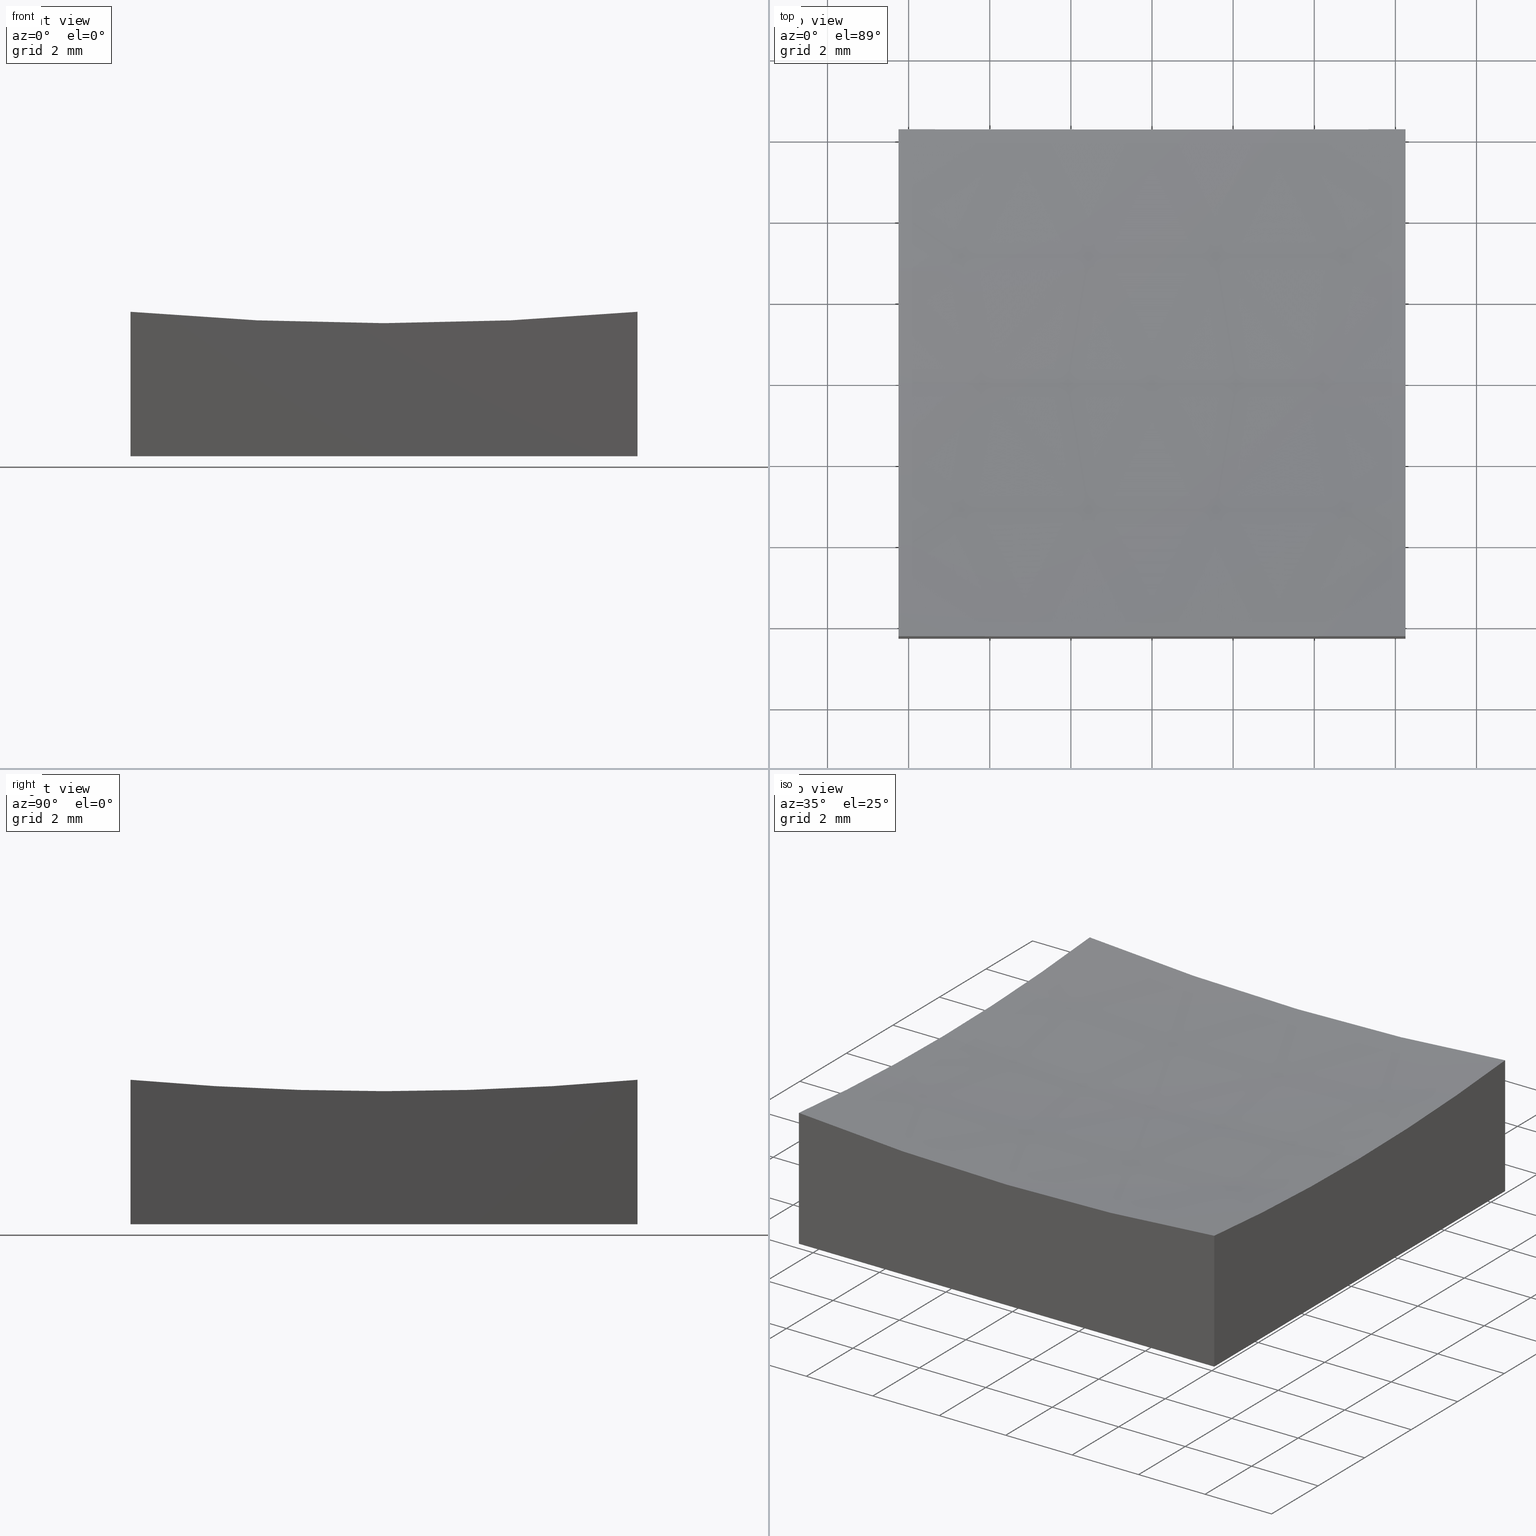
[diagram: canonical four-view strip — front | top / right | iso, engineering-drawing reading convention]
A machine part, canonical four-view strip (front | top / right | iso — engineering-drawing reading convention). The complete STEP part file that produces these views, byte-faithful:
ISO-10303-21;
HEADER;
FILE_DESCRIPTION (( 'STEP AP214' ),
    '1' );
FILE_NAME ('270016.STEP',
    '2020-06-01T08:49:42',
    ( '' ),
    ( '' ),
    'SwSTEP 2.0',
    'SolidWorks 2019',
    '' );
FILE_SCHEMA (( 'AUTOMOTIVE_DESIGN' ));
ENDSEC;

DATA;
#1 = EDGE_CURVE ( 'NONE', #153, #204, #198, .T. ) ;
#2 =( NAMED_UNIT ( * ) PLANE_ANGLE_UNIT ( ) SI_UNIT ( $, .RADIAN. ) );
#3 = DIRECTION ( 'NONE',  ( 0.0000000000000000000, 0.0000000000000000000, -1.000000000000000000 ) ) ;
#4 = DIRECTION ( 'NONE',  ( -1.000000000000000000, 1.224646799147353207E-16, 0.0000000000000000000 ) ) ;
#5 = PRODUCT_DEFINITION_SHAPE ( 'NONE', 'NONE',  #218 ) ;
#6 = ORIENTED_EDGE ( 'NONE', *, *, #97, .T. ) ;
#7 = PLANE ( 'NONE',  #18 ) ;
#8 = EDGE_LOOP ( 'NONE', ( #173, #211, #244, #109 ) ) ;
#9 = APPLICATION_CONTEXT ( 'automotive_design' ) ;
#10 = VECTOR ( 'NONE', #60, 1000.000000000000000 ) ;
#11 = FACE_OUTER_BOUND ( 'NONE', #50, .T. ) ;
#12 = VERTEX_POINT ( 'NONE', #196 ) ;
#13 = CARTESIAN_POINT ( 'NONE',  ( 6.250000000000000000, 6.250000000000000888, 0.0000000000000000000 ) ) ;
#14 = ORIENTED_EDGE ( 'NONE', *, *, #59, .F. ) ;
#15 = EDGE_CURVE ( 'NONE', #135, #52, #242, .T. ) ;
#16 = CIRCLE ( 'NONE', #48, 69.72042383692169665 ) ;
#17 = LINE ( 'NONE', #56, #162 ) ;
#18 = AXIS2_PLACEMENT_3D ( 'NONE', #168, #89, #216 ) ;
#19 = APPLICATION_PROTOCOL_DEFINITION ( 'draft international standard', 'automotive_design', 1998, #142 ) ;
#20 = PRESENTATION_LAYER_ASSIGNMENT (  '', '', ( #103 ) ) ;
#21 =( LENGTH_UNIT ( ) NAMED_UNIT ( * ) SI_UNIT ( .MILLI., .METRE. ) );
#22 = SURFACE_STYLE_USAGE ( .BOTH. , #250 ) ;
#23 = FILL_AREA_STYLE_COLOUR ( '', #110 ) ;
#24 = FACE_OUTER_BOUND ( 'NONE', #8, .T. ) ;
#25 = ORIENTED_EDGE ( 'NONE', *, *, #227, .T. ) ;
#26 = DIRECTION ( 'NONE',  ( 1.224646799147353207E-16, 1.000000000000000000, 3.905599837641398835E-33 ) ) ;
#27 = CARTESIAN_POINT ( 'NONE',  ( -6.250000000000000000, -6.250000000000000888, 0.0000000000000000000 ) ) ;
#28 = CARTESIAN_POINT ( 'NONE',  ( 8.939921633775681592E-15, 0.0000000000000000000, 73.00000000000001421 ) ) ;
#29 = UNCERTAINTY_MEASURE_WITH_UNIT (LENGTH_MEASURE( 1.000000000000000082E-05 ), #179, 'distance_accuracy_value', 'NONE');
#30 = EDGE_CURVE ( 'NONE', #12, #106, #212, .T. ) ;
#31 = ORIENTED_EDGE ( 'NONE', *, *, #59, .T. ) ;
#32 = DIRECTION ( 'NONE',  ( 0.0000000000000000000, 0.0000000000000000000, -1.000000000000000000 ) ) ;
#33 = AXIS2_PLACEMENT_3D ( 'NONE', #221, #245, #134 ) ;
#34 = ORIENTED_EDGE ( 'NONE', *, *, #143, .T. ) ;
#35 = CARTESIAN_POINT ( 'NONE',  ( -6.250000000000000000, 6.250000000000000888, 0.0000000000000000000 ) ) ;
#36 = CARTESIAN_POINT ( 'NONE',  ( -6.250000000000000000, -6.250000000000000888, 10.00000000000000000 ) ) ;
#37 = STYLED_ITEM ( 'NONE', ( #121 ), #116 ) ;
#38 =( NAMED_UNIT ( * ) PLANE_ANGLE_UNIT ( ) SI_UNIT ( $, .RADIAN. ) );
#39 = MANIFOLD_SOLID_BREP ( '�г�-��ת2', #192 ) ;
#40 = EDGE_CURVE ( 'NONE', #187, #222, #219, .T. ) ;
#41 = SURFACE_STYLE_FILL_AREA ( #62 ) ;
#42 = DIRECTION ( 'NONE',  ( -1.000000000000000000, 0.0000000000000000000, -0.0000000000000000000 ) ) ;
#43 = CARTESIAN_POINT ( 'NONE',  ( 8.939921633775681592E-15, -6.250000000000000888, 73.00000000000001421 ) ) ;
#44 = CARTESIAN_POINT ( 'NONE',  ( 6.250000000000000000, -6.250000000000000888, 10.00000000000000000 ) ) ;
#45 = SPHERICAL_SURFACE ( 'NONE', #237, 70.00000000000000000 ) ;
#46 = ORIENTED_EDGE ( 'NONE', *, *, #68, .F. ) ;
#47 = CARTESIAN_POINT ( 'NONE',  ( 6.250000000000000000, -6.250000000000000888, 3.560277938344263760 ) ) ;
#48 = AXIS2_PLACEMENT_3D ( 'NONE', #92, #223, #32 ) ;
#49 = CARTESIAN_POINT ( 'NONE',  ( 6.250000000000000000, 6.250000000000000888, 0.0000000000000000000 ) ) ;
#50 = EDGE_LOOP ( 'NONE', ( #90, #215, #130, #217, #224 ) ) ;
#51 = PLANE ( 'NONE',  #33 ) ;
#52 = VERTEX_POINT ( 'NONE', #177 ) ;
#53 = CARTESIAN_POINT ( 'NONE',  ( 6.250000000000000000, 6.250000000000000888, 3.560277938344263760 ) ) ;
#54 = VECTOR ( 'NONE', #229, 1000.000000000000000 ) ;
#55 = MECHANICAL_DESIGN_GEOMETRIC_PRESENTATION_REPRESENTATION (  '', ( #103 ), #96 ) ;
#56 = CARTESIAN_POINT ( 'NONE',  ( 6.250000000000000000, 6.250000000000000888, 10.00000000000000000 ) ) ;
#57 =( NAMED_UNIT ( * ) SI_UNIT ( $, .STERADIAN. ) SOLID_ANGLE_UNIT ( ) );
#58 = CIRCLE ( 'NONE', #190, 69.72042383692169665 ) ;
#59 = EDGE_CURVE ( 'NONE', #222, #67, #58, .T. ) ;
#60 = DIRECTION ( 'NONE',  ( 1.000000000000000000, 0.0000000000000000000, 0.0000000000000000000 ) ) ;
#61 = CARTESIAN_POINT ( 'NONE',  ( -6.250000000000000000, 6.250000000000000888, 3.560277938344263760 ) ) ;
#62 = FILL_AREA_STYLE ('',( #232 ) ) ;
#63 = CARTESIAN_POINT ( 'NONE',  ( -6.250000000000000000, -6.250000000000000888, 0.0000000000000000000 ) ) ;
#64 = DIRECTION ( 'NONE',  ( 1.000000000000000000, 0.0000000000000000000, 0.0000000000000000000 ) ) ;
#65 = AXIS2_PLACEMENT_3D ( 'NONE', #85, #26, #4 ) ;
#66 = DIRECTION ( 'NONE',  ( -0.0000000000000000000, 0.0000000000000000000, -1.000000000000000000 ) ) ;
#67 = VERTEX_POINT ( 'NONE', #120 ) ;
#68 = EDGE_CURVE ( 'NONE', #93, #106, #17, .T. ) ;
#69 = EDGE_CURVE ( 'NONE', #12, #153, #77, .T. ) ;
#70 = FACE_OUTER_BOUND ( 'NONE', #183, .T. ) ;
#71 = ORIENTED_EDGE ( 'NONE', *, *, #40, .F. ) ;
#72 = CARTESIAN_POINT ( 'NONE',  ( 1.545860043261271274E-14, 0.0000000000000000000, 3.000000000000002665 ) ) ;
#73 = ORIENTED_EDGE ( 'NONE', *, *, #207, .T. ) ;
#74 = AXIS2_PLACEMENT_3D ( 'NONE', #154, #132, #94 ) ;
#75 = AXIS2_PLACEMENT_3D ( 'NONE', #84, #234, #79 ) ;
#76 = EDGE_CURVE ( 'NONE', #52, #93, #230, .T. ) ;
#77 = LINE ( 'NONE', #35, #199 ) ;
#78 = SHAPE_DEFINITION_REPRESENTATION ( #5, #116 ) ;
#79 = DIRECTION ( 'NONE',  ( 1.000000000000000000, 0.0000000000000000000, 0.0000000000000000000 ) ) ;
#80 = AXIS2_PLACEMENT_3D ( 'NONE', #43, #83, #233 ) ;
#81 = DIRECTION ( 'NONE',  ( 0.0000000000000000000, 0.0000000000000000000, -1.000000000000000000 ) ) ;
#82 = CARTESIAN_POINT ( 'NONE',  ( 6.250000000000000000, -6.250000000000000888, 0.0000000000000000000 ) ) ;
#83 = DIRECTION ( 'NONE',  ( 0.0000000000000000000, 1.000000000000000000, 0.0000000000000000000 ) ) ;
#84 = CARTESIAN_POINT ( 'NONE',  ( 0.0000000000000000000, 0.0000000000000000000, 0.0000000000000000000 ) ) ;
#85 = CARTESIAN_POINT ( 'NONE',  ( 8.939921633775681592E-15, 0.0000000000000000000, 73.00000000000001421 ) ) ;
#86 = PRODUCT_DEFINITION_FORMATION_WITH_SPECIFIED_SOURCE ( '�κ�', '', #169, .NOT_KNOWN. ) ;
#87 = ORIENTED_EDGE ( 'NONE', *, *, #30, .F. ) ;
#88 = CIRCLE ( 'NONE', #101, 69.72042383692169665 ) ;
#89 = DIRECTION ( 'NONE',  ( 0.0000000000000000000, 1.000000000000000000, 0.0000000000000000000 ) ) ;
#90 = ORIENTED_EDGE ( 'NONE', *, *, #143, .F. ) ;
#91 = ADVANCED_FACE ( 'NONE', ( #11 ), #201, .F. ) ;
#92 = CARTESIAN_POINT ( 'NONE',  ( 6.250000000000000000, 0.0000000000000000000, 73.00000000000001421 ) ) ;
#93 = VERTEX_POINT ( 'NONE', #53 ) ;
#94 = DIRECTION ( 'NONE',  ( 0.0000000000000000000, 0.0000000000000000000, 1.000000000000000000 ) ) ;
#95 = ORIENTED_EDGE ( 'NONE', *, *, #69, .T. ) ;
#96 =( GEOMETRIC_REPRESENTATION_CONTEXT ( 3 ) GLOBAL_UNCERTAINTY_ASSIGNED_CONTEXT ( ( #138 ) ) GLOBAL_UNIT_ASSIGNED_CONTEXT ( ( #21, #2, #144 ) ) REPRESENTATION_CONTEXT ( 'NONE', 'WORKASPACE' ) );
#97 = EDGE_CURVE ( 'NONE', #187, #52, #16, .T. ) ;
#98 = EDGE_CURVE ( 'NONE', #106, #204, #156, .T. ) ;
#99 = DIRECTION ( 'NONE',  ( 1.000000000000000000, 0.0000000000000000000, -0.0000000000000000000 ) ) ;
#100 =( GEOMETRIC_REPRESENTATION_CONTEXT ( 3 ) GLOBAL_UNCERTAINTY_ASSIGNED_CONTEXT ( ( #29 ) ) GLOBAL_UNIT_ASSIGNED_CONTEXT ( ( #179, #148, #104 ) ) REPRESENTATION_CONTEXT ( 'NONE', 'WORKASPACE' ) );
#101 = AXIS2_PLACEMENT_3D ( 'NONE', #161, #213, #3 ) ;
#102 =( LENGTH_UNIT ( ) NAMED_UNIT ( * ) SI_UNIT ( .MILLI., .METRE. ) );
#103 = STYLED_ITEM ( 'NONE', ( #210 ), #39 ) ;
#104 =( NAMED_UNIT ( * ) SI_UNIT ( $, .STERADIAN. ) SOLID_ANGLE_UNIT ( ) );
#105 = CARTESIAN_POINT ( 'NONE',  ( -6.250000000000000000, 6.250000000000000888, 10.00000000000000000 ) ) ;
#106 = VERTEX_POINT ( 'NONE', #13 ) ;
#107 = FACE_OUTER_BOUND ( 'NONE', #112, .T. ) ;
#108 = EDGE_CURVE ( 'NONE', #93, #202, #166, .T. ) ;
#109 = ORIENTED_EDGE ( 'NONE', *, *, #1, .T. ) ;
#110 = COLOUR_RGB ( '',1.000000000000000000, 1.000000000000000000, 1.000000000000000000 ) ;
#111 = LINE ( 'NONE', #172, #205 ) ;
#112 = EDGE_LOOP ( 'NONE', ( #115, #31, #73, #175, #95 ) ) ;
#113 = DIRECTION ( 'NONE',  ( 0.0000000000000000000, -1.000000000000000000, 0.0000000000000000000 ) ) ;
#114 = MECHANICAL_DESIGN_GEOMETRIC_PRESENTATION_REPRESENTATION (  '', ( #37 ), #100 ) ;
#115 = ORIENTED_EDGE ( 'NONE', *, *, #226, .F. ) ;
#116 = ADVANCED_BREP_SHAPE_REPRESENTATION ( '270016', ( #39, #75 ), #209 ) ;
#117 = EDGE_CURVE ( 'NONE', #202, #12, #111, .T. ) ;
#118 = ADVANCED_FACE ( 'NONE', ( #70 ), #51, .T. ) ;
#119 = PRODUCT_CONTEXT ( 'NONE', #142, 'mechanical' ) ;
#120 = CARTESIAN_POINT ( 'NONE',  ( -6.250000000000000000, 7.654042494670971412E-16, 3.279576163078306905 ) ) ;
#121 = PRESENTATION_STYLE_ASSIGNMENT (( #22 ) ) ;
#122 = AXIS2_PLACEMENT_3D ( 'NONE', #141, #252, #42 ) ;
#123 = LINE ( 'NONE', #44, #225 ) ;
#124 = SURFACE_SIDE_STYLE ('',( #41 ) ) ;
#125 = FILL_AREA_STYLE ('',( #23 ) ) ;
#126 = LINE ( 'NONE', #36, #54 ) ;
#127 = CARTESIAN_POINT ( 'NONE',  ( 8.939921633775681592E-15, 0.0000000000000000000, 73.00000000000001421 ) ) ;
#128 = ORIENTED_EDGE ( 'NONE', *, *, #117, .F. ) ;
#129 = DIRECTION ( 'NONE',  ( 0.0000000000000000000, -0.0000000000000000000, 1.000000000000000000 ) ) ;
#130 = ORIENTED_EDGE ( 'NONE', *, *, #76, .T. ) ;
#131 = AXIS2_PLACEMENT_3D ( 'NONE', #160, #99, #203 ) ;
#132 = DIRECTION ( 'NONE',  ( 0.0000000000000000000, 1.000000000000000000, 0.0000000000000000000 ) ) ;
#133 = ORIENTED_EDGE ( 'NONE', *, *, #68, .T. ) ;
#134 = DIRECTION ( 'NONE',  ( -0.0000000000000000000, 0.0000000000000000000, -1.000000000000000000 ) ) ;
#135 = VERTEX_POINT ( 'NONE', #72 ) ;
#136 = PRODUCT_DEFINITION_CONTEXT ( 'detailed design', #9, 'design' ) ;
#137 = AXIS2_PLACEMENT_3D ( 'NONE', #105, #238, #66 ) ;
#138 = UNCERTAINTY_MEASURE_WITH_UNIT (LENGTH_MEASURE( 1.000000000000000082E-05 ), #21, 'distance_accuracy_value', 'NONE');
#139 = AXIS2_PLACEMENT_3D ( 'NONE', #181, #251, #81 ) ;
#140 = CARTESIAN_POINT ( 'NONE',  ( -6.250000000000000000, 0.0000000000000000000, 73.00000000000001421 ) ) ;
#141 = CARTESIAN_POINT ( 'NONE',  ( 0.0000000000000000000, 0.0000000000000000000, 0.0000000000000000000 ) ) ;
#142 = APPLICATION_CONTEXT ( 'automotive_design' ) ;
#143 = EDGE_CURVE ( 'NONE', #135, #67, #150, .T. ) ;
#144 =( NAMED_UNIT ( * ) SI_UNIT ( $, .STERADIAN. ) SOLID_ANGLE_UNIT ( ) );
#145 = CARTESIAN_POINT ( 'NONE',  ( -6.250000000000000000, -6.250000000000000888, 3.560277938344263760 ) ) ;
#146 = ADVANCED_FACE ( 'NONE', ( #195 ), #45, .F. ) ;
#147 = SURFACE_STYLE_USAGE ( .BOTH. , #124 ) ;
#148 =( NAMED_UNIT ( * ) PLANE_ANGLE_UNIT ( ) SI_UNIT ( $, .RADIAN. ) );
#149 = PLANE ( 'NONE',  #249 ) ;
#150 = CIRCLE ( 'NONE', #65, 70.00000000000000000 ) ;
#151 = ORIENTED_EDGE ( 'NONE', *, *, #30, .T. ) ;
#152 = FACE_OUTER_BOUND ( 'NONE', #239, .T. ) ;
#153 = VERTEX_POINT ( 'NONE', #63 ) ;
#154 = CARTESIAN_POINT ( 'NONE',  ( 8.939921633775681592E-15, 6.250000000000000888, 73.00000000000001421 ) ) ;
#155 = ORIENTED_EDGE ( 'NONE', *, *, #97, .F. ) ;
#156 = LINE ( 'NONE', #49, #178 ) ;
#157 = EDGE_LOOP ( 'NONE', ( #246, #34, #14, #71, #6 ) ) ;
#158 = ADVANCED_FACE ( 'NONE', ( #24 ), #149, .F. ) ;
#159 = COLOUR_RGB ( '',1.000000000000000000, 1.000000000000000000, 1.000000000000000000 ) ;
#160 = CARTESIAN_POINT ( 'NONE',  ( 6.250000000000000000, 0.0000000000000000000, 73.00000000000001421 ) ) ;
#161 = CARTESIAN_POINT ( 'NONE',  ( -6.250000000000000000, 0.0000000000000000000, 73.00000000000001421 ) ) ;
#162 = VECTOR ( 'NONE', #208, 1000.000000000000000 ) ;
#163 = ADVANCED_FACE ( 'NONE', ( #107 ), #182, .F. ) ;
#164 = CARTESIAN_POINT ( 'NONE',  ( -6.250000000000000000, 6.250000000000000888, 0.0000000000000000000 ) ) ;
#165 = FACE_OUTER_BOUND ( 'NONE', #167, .T. ) ;
#166 = CIRCLE ( 'NONE', #74, 69.72042383692169665 ) ;
#167 = EDGE_LOOP ( 'NONE', ( #151, #189, #185, #236 ) ) ;
#168 = CARTESIAN_POINT ( 'NONE',  ( -6.250000000000000000, 6.250000000000000888, 10.00000000000000000 ) ) ;
#169 = PRODUCT ( '270016', '270016', '', ( #119 ) ) ;
#170 = ORIENTED_EDGE ( 'NONE', *, *, #108, .F. ) ;
#171 = VECTOR ( 'NONE', #64, 1000.000000000000000 ) ;
#172 = CARTESIAN_POINT ( 'NONE',  ( -6.250000000000000000, 6.250000000000000888, 10.00000000000000000 ) ) ;
#173 = ORIENTED_EDGE ( 'NONE', *, *, #227, .F. ) ;
#174 = DIRECTION ( 'NONE',  ( -0.0000000000000000000, -0.0000000000000000000, -1.000000000000000000 ) ) ;
#175 = ORIENTED_EDGE ( 'NONE', *, *, #117, .T. ) ;
#176 = AXIS2_PLACEMENT_3D ( 'NONE', #28, #243, #188 ) ;
#177 = CARTESIAN_POINT ( 'NONE',  ( 6.250000000000000000, 0.0000000000000000000, 3.279576163078306905 ) ) ;
#178 = VECTOR ( 'NONE', #113, 1000.000000000000000 ) ;
#179 =( LENGTH_UNIT ( ) NAMED_UNIT ( * ) SI_UNIT ( .MILLI., .METRE. ) );
#180 = PRODUCT_RELATED_PRODUCT_CATEGORY ( 'part', '', ( #169 ) ) ;
#181 = CARTESIAN_POINT ( 'NONE',  ( 8.939921633775681592E-15, 0.0000000000000000000, 73.00000000000001421 ) ) ;
#182 = PLANE ( 'NONE',  #137 ) ;
#183 = EDGE_LOOP ( 'NONE', ( #155, #25, #220, #46, #240 ) ) ;
#184 = DIRECTION ( 'NONE',  ( -0.0000000000000000000, 1.000000000000000000, 0.0000000000000000000 ) ) ;
#185 = ORIENTED_EDGE ( 'NONE', *, *, #1, .F. ) ;
#186 = ADVANCED_FACE ( 'NONE', ( #152 ), #7, .T. ) ;
#187 = VERTEX_POINT ( 'NONE', #47 ) ;
#188 = DIRECTION ( 'NONE',  ( 1.000000000000000000, 0.0000000000000000000, 0.0000000000000000000 ) ) ;
#189 = ORIENTED_EDGE ( 'NONE', *, *, #98, .T. ) ;
#190 = AXIS2_PLACEMENT_3D ( 'NONE', #140, #248, #191 ) ;
#191 = DIRECTION ( 'NONE',  ( 0.0000000000000000000, 0.0000000000000000000, -1.000000000000000000 ) ) ;
#192 = CLOSED_SHELL ( 'NONE', ( #146, #186, #163, #158, #118, #200, #91 ) ) ;
#193 = SURFACE_STYLE_FILL_AREA ( #125 ) ;
#194 = DIRECTION ( 'NONE',  ( -0.0000000000000000000, -0.0000000000000000000, -1.000000000000000000 ) ) ;
#195 = FACE_OUTER_BOUND ( 'NONE', #157, .T. ) ;
#196 = CARTESIAN_POINT ( 'NONE',  ( -6.250000000000000000, 6.250000000000000888, 0.0000000000000000000 ) ) ;
#197 = CARTESIAN_POINT ( 'NONE',  ( -6.250000000000000000, -6.250000000000000888, 10.00000000000000000 ) ) ;
#198 = LINE ( 'NONE', #27, #171 ) ;
#199 = VECTOR ( 'NONE', #228, 1000.000000000000000 ) ;
#200 = ADVANCED_FACE ( 'NONE', ( #165 ), #231, .T. ) ;
#201 = SPHERICAL_SURFACE ( 'NONE', #176, 70.00000000000000000 ) ;
#202 = VERTEX_POINT ( 'NONE', #61 ) ;
#203 = DIRECTION ( 'NONE',  ( 0.0000000000000000000, 0.0000000000000000000, -1.000000000000000000 ) ) ;
#204 = VERTEX_POINT ( 'NONE', #82 ) ;
#205 = VECTOR ( 'NONE', #174, 1000.000000000000000 ) ;
#206 = APPLICATION_PROTOCOL_DEFINITION ( 'draft international standard', 'automotive_design', 1998, #9 ) ;
#207 = EDGE_CURVE ( 'NONE', #67, #202, #88, .T. ) ;
#208 = DIRECTION ( 'NONE',  ( -0.0000000000000000000, -0.0000000000000000000, -1.000000000000000000 ) ) ;
#209 =( GEOMETRIC_REPRESENTATION_CONTEXT ( 3 ) GLOBAL_UNCERTAINTY_ASSIGNED_CONTEXT ( ( #241 ) ) GLOBAL_UNIT_ASSIGNED_CONTEXT ( ( #102, #38, #57 ) ) REPRESENTATION_CONTEXT ( 'NONE', 'WORKASPACE' ) );
#210 = PRESENTATION_STYLE_ASSIGNMENT (( #147 ) ) ;
#211 = ORIENTED_EDGE ( 'NONE', *, *, #40, .T. ) ;
#212 = LINE ( 'NONE', #164, #10 ) ;
#213 = DIRECTION ( 'NONE',  ( 1.000000000000000000, 0.0000000000000000000, -0.0000000000000000000 ) ) ;
#214 = DIRECTION ( 'NONE',  ( 0.0000000000000000000, 1.000000000000000000, 0.0000000000000000000 ) ) ;
#215 = ORIENTED_EDGE ( 'NONE', *, *, #15, .T. ) ;
#216 = DIRECTION ( 'NONE',  ( 0.0000000000000000000, -0.0000000000000000000, 1.000000000000000000 ) ) ;
#217 = ORIENTED_EDGE ( 'NONE', *, *, #108, .T. ) ;
#218 = PRODUCT_DEFINITION ( 'δ֪', '', #86, #136 ) ;
#219 = CIRCLE ( 'NONE', #80, 69.72042383692169665 ) ;
#220 = ORIENTED_EDGE ( 'NONE', *, *, #98, .F. ) ;
#221 = CARTESIAN_POINT ( 'NONE',  ( 6.250000000000000000, 6.250000000000000888, 10.00000000000000000 ) ) ;
#222 = VERTEX_POINT ( 'NONE', #145 ) ;
#223 = DIRECTION ( 'NONE',  ( 1.000000000000000000, 0.0000000000000000000, -0.0000000000000000000 ) ) ;
#224 = ORIENTED_EDGE ( 'NONE', *, *, #207, .F. ) ;
#225 = VECTOR ( 'NONE', #194, 1000.000000000000000 ) ;
#226 = EDGE_CURVE ( 'NONE', #222, #153, #126, .T. ) ;
#227 = EDGE_CURVE ( 'NONE', #187, #204, #123, .T. ) ;
#228 = DIRECTION ( 'NONE',  ( 0.0000000000000000000, -1.000000000000000000, 0.0000000000000000000 ) ) ;
#229 = DIRECTION ( 'NONE',  ( -0.0000000000000000000, -0.0000000000000000000, -1.000000000000000000 ) ) ;
#230 = CIRCLE ( 'NONE', #131, 69.72042383692169665 ) ;
#231 = PLANE ( 'NONE',  #122 ) ;
#232 = FILL_AREA_STYLE_COLOUR ( '', #159 ) ;
#233 = DIRECTION ( 'NONE',  ( 0.0000000000000000000, 0.0000000000000000000, 1.000000000000000000 ) ) ;
#234 = DIRECTION ( 'NONE',  ( 0.0000000000000000000, 0.0000000000000000000, 1.000000000000000000 ) ) ;
#235 = DIRECTION ( 'NONE',  ( 1.000000000000000000, 0.0000000000000000000, 0.0000000000000000000 ) ) ;
#236 = ORIENTED_EDGE ( 'NONE', *, *, #69, .F. ) ;
#237 = AXIS2_PLACEMENT_3D ( 'NONE', #127, #184, #235 ) ;
#238 = DIRECTION ( 'NONE',  ( 1.000000000000000000, 0.0000000000000000000, -0.0000000000000000000 ) ) ;
#239 = EDGE_LOOP ( 'NONE', ( #170, #133, #87, #128 ) ) ;
#240 = ORIENTED_EDGE ( 'NONE', *, *, #76, .F. ) ;
#241 = UNCERTAINTY_MEASURE_WITH_UNIT (LENGTH_MEASURE( 1.000000000000000082E-05 ), #102, 'distance_accuracy_value', 'NONE');
#242 = CIRCLE ( 'NONE', #139, 70.00000000000000000 ) ;
#243 = DIRECTION ( 'NONE',  ( -0.0000000000000000000, 1.000000000000000000, 0.0000000000000000000 ) ) ;
#244 = ORIENTED_EDGE ( 'NONE', *, *, #226, .T. ) ;
#245 = DIRECTION ( 'NONE',  ( 1.000000000000000000, 0.0000000000000000000, -0.0000000000000000000 ) ) ;
#246 = ORIENTED_EDGE ( 'NONE', *, *, #15, .F. ) ;
#247 = PRESENTATION_LAYER_ASSIGNMENT (  '', '', ( #37 ) ) ;
#248 = DIRECTION ( 'NONE',  ( 1.000000000000000000, 0.0000000000000000000, -0.0000000000000000000 ) ) ;
#249 = AXIS2_PLACEMENT_3D ( 'NONE', #197, #214, #129 ) ;
#250 = SURFACE_SIDE_STYLE ('',( #193 ) ) ;
#251 = DIRECTION ( 'NONE',  ( 0.0000000000000000000, -1.000000000000000000, 0.0000000000000000000 ) ) ;
#252 = DIRECTION ( 'NONE',  ( 0.0000000000000000000, 0.0000000000000000000, -1.000000000000000000 ) ) ;
ENDSEC;
END-ISO-10303-21;
